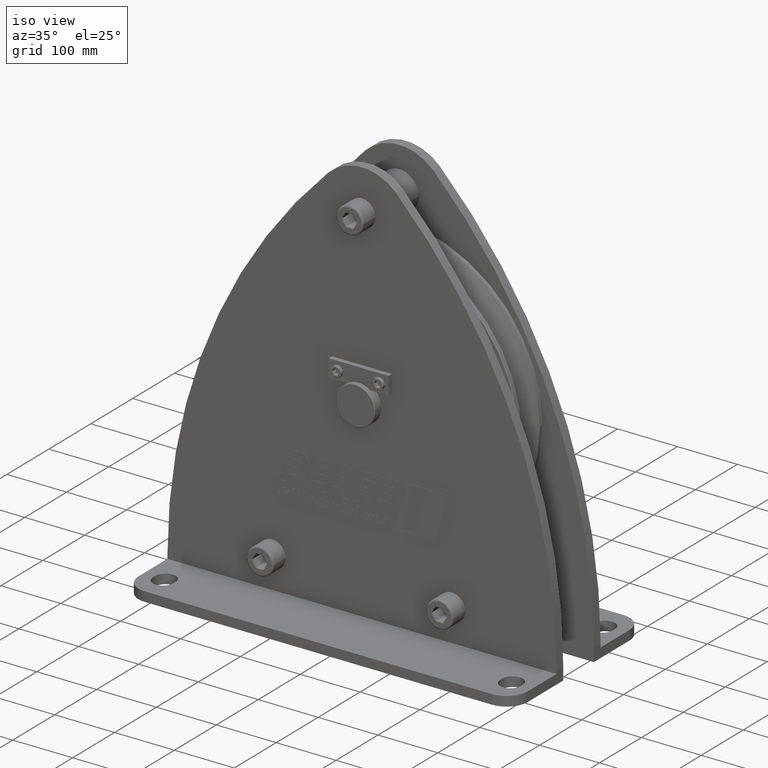
[diagram: clean part render]
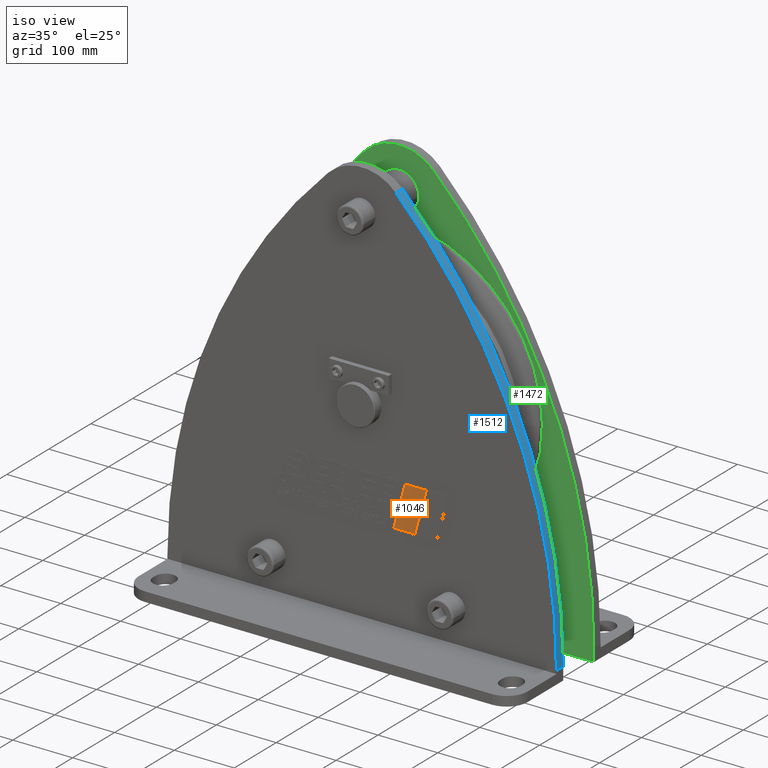
[diagram: same view with three faces highlighted in distinct colors, each labeled with its STEP entity id]
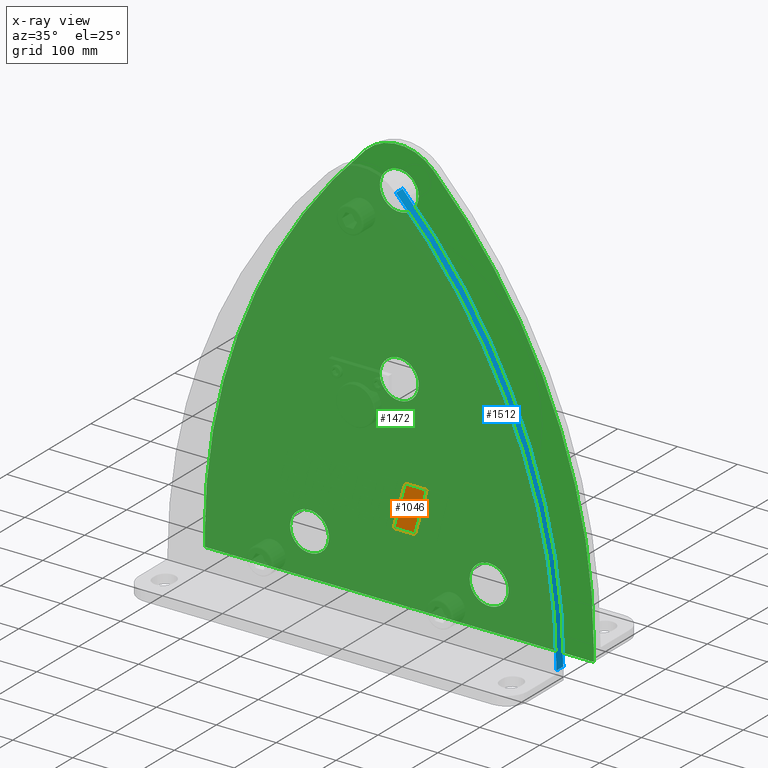
[diagram: x-ray of the same camera — body ghosted, the three highlighted faces saturated]
A machine part, iso view with three faces highlighted in distinct colors.
The next image is the same camera in x-ray (body ghosted, the three faces saturated) — at least one of them is partly hidden behind the body in this view.
Their STEP definitions:

[orange] entity #1046 — the highlighted planar face has unit normal (0, -1, 0).
#1046=ADVANCED_FACE('',(#2564),#2565,.T.);
#2564=FACE_OUTER_BOUND('',#4596,.T.);
#2565=PLANE('',#4597);
#4596=EDGE_LOOP('',(#7965,#7966,#7967,#7968));
#4597=AXIS2_PLACEMENT_3D('',#7969,#7970,#7971);
#7965=ORIENTED_EDGE('',*,*,#12653,.T.);
#7966=ORIENTED_EDGE('',*,*,#12665,.T.);
#7967=ORIENTED_EDGE('',*,*,#12661,.T.);
#7968=ORIENTED_EDGE('',*,*,#12657,.T.);
#7969=CARTESIAN_POINT('',(3.50119933045789E-012,-52.5,-70.7966964212054));
#7970=DIRECTION('',(0.0,-1.0,0.0));
#7971=DIRECTION('',(1.0,0.0,0.0));
#12653=EDGE_CURVE('',#15432,#15430,#15433,.T.);
#12657=EDGE_CURVE('',#15438,#15432,#15439,.T.);
#12661=EDGE_CURVE('',#15444,#15438,#15445,.T.);
#12665=EDGE_CURVE('',#15430,#15444,#15449,.T.);
#15430=VERTEX_POINT('',#22343);
#15432=VERTEX_POINT('',#22346);
#15433=LINE('',#22347,#22348);
#15438=VERTEX_POINT('',#22355);
#15439=LINE('',#22356,#22357);
#15444=VERTEX_POINT('',#22364);
#15445=LINE('',#22365,#22366);
#15449=LINE('',#22372,#22373);
#22343=CARTESIAN_POINT('',(107.514381078122,-52.5,-104.744363610506));
#22346=CARTESIAN_POINT('',(88.3535376120271,-52.5,-176.253604));
#22347=CARTESIAN_POINT('',(108.156790488606,-52.5,-102.346859082896));
#22348=VECTOR('',#27631,1.0);
#22355=CARTESIAN_POINT('',(53.0471320019867,-52.5,-176.253604));
#22356=CARTESIAN_POINT('',(44.1767688060153,-52.5,-176.253604));
#22357=VECTOR('',#27634,1.0);
#22364=CARTESIAN_POINT('',(72.2079754680813,-52.5,-104.744363610506));
#22365=CARTESIAN_POINT('',(64.4525035334388,-52.5,-133.688178526048));
#22366=VECTOR('',#27637,1.0);
#22372=CARTESIAN_POINT('',(36.1039877340424,-52.5,-104.744363610506));
#22373=VECTOR('',#27640,1.0);
#27631=DIRECTION('',(0.258819048283064,0.0,0.965925825436844));
#27634=DIRECTION('',(1.0,0.0,0.0));
#27637=DIRECTION('',(-0.258819048283062,-0.0,-0.965925825436845));
#27640=DIRECTION('',(-1.0,0.0,0.0));

[blue] entity #1512 — the highlighted cylindrical surface (partial cylindrical patch) has radius 920 mm, axis along (0, -1, 0).
#1512=ADVANCED_FACE('',(#3289),#3290,.T.);
#3289=FACE_OUTER_BOUND('',#5321,.T.);
#3290=CYLINDRICAL_SURFACE('',#5322,920.0000000136);
#5321=EDGE_LOOP('',(#10097,#10098,#10099,#10100));
#5322=AXIS2_PLACEMENT_3D('',#10101,#10102,#10103);
#10097=ORIENTED_EDGE('',*,*,#12860,.T.);
#10098=ORIENTED_EDGE('',*,*,#13866,.F.);
#10099=ORIENTED_EDGE('',*,*,#13859,.T.);
#10100=ORIENTED_EDGE('',*,*,#13867,.T.);
#10101=CARTESIAN_POINT('',(-595.0000000136,-36.5,-318.747549016));
#10102=DIRECTION('',(0.0,-1.0,0.0));
#10103=DIRECTION('',(1.0,0.0,6.98129863087675E-012));
#12860=EDGE_CURVE('',#15825,#15823,#15826,.T.);
#13859=EDGE_CURVE('',#17207,#17208,#17209,.T.);
#13866=EDGE_CURVE('',#17207,#15823,#17220,.T.);
#13867=EDGE_CURVE('',#17208,#15825,#17221,.T.);
#15823=VERTEX_POINT('',#22860);
#15825=VERTEX_POINT('',#22863);
#15826=CIRCLE('',#22864,920.0000000136);
#17207=VERTEX_POINT('',#24764);
#17208=VERTEX_POINT('',#24765);
#17209=CIRCLE('',#24766,920.0000000136);
#17220=LINE('',#24780,#24781);
#17221=LINE('',#24782,#24783);
#22860=CARTESIAN_POINT('',(325.0,-52.5,-318.747549009577));
#22863=CARTESIAN_POINT('',(56.666666670509,-52.5,330.660300919498));
#22864=AXIS2_PLACEMENT_3D('',#27977,#27978,#27979);
#24764=CARTESIAN_POINT('',(325.0,-36.5,-318.747549009577));
#24765=CARTESIAN_POINT('',(56.666666670509,-36.5,330.660300919498));
#24766=AXIS2_PLACEMENT_3D('',#28991,#28992,#28993);
#24780=CARTESIAN_POINT('',(325.0,-36.5,-318.747549009577));
#24781=VECTOR('',#29003,1.0);
#24782=CARTESIAN_POINT('',(56.666666670509,-36.5,330.660300919498));
#24783=VECTOR('',#29004,1.0);
#27977=CARTESIAN_POINT('',(-595.0000000136,-52.5,-318.747549016));
#27978=DIRECTION('',(-0.0,1.0,0.0));
#27979=DIRECTION('',(1.0,0.0,6.98129863087675E-012));
#28991=CARTESIAN_POINT('',(-595.0000000136,-36.5,-318.747549016));
#28992=DIRECTION('',(0.0,-1.0,0.0));
#28993=DIRECTION('',(1.0,0.0,6.98129863087675E-012));
#29003=DIRECTION('',(0.0,-1.0,0.0));
#29004=DIRECTION('',(0.0,-1.0,0.0));

[green] entity #1472 — the highlighted planar face has unit normal (0, 1, 0).
#1472=ADVANCED_FACE('',(#3217,#3218,#3219,#3220,#3221),#3222,.F.);
#3217=FACE_BOUND('',#5249,.T.);
#3218=FACE_BOUND('',#5250,.T.);
#3219=FACE_BOUND('',#5251,.T.);
#3220=FACE_BOUND('',#5252,.T.);
#3221=FACE_OUTER_BOUND('',#5253,.T.);
#3222=PLANE('',#5254);
#5249=EDGE_LOOP('',(#9891,#9892));
#5250=EDGE_LOOP('',(#9893,#9894));
#5251=EDGE_LOOP('',(#9895,#9896));
#5252=EDGE_LOOP('',(#9897,#9898,#9899));
#5253=EDGE_LOOP('',(#9900,#9901,#9902,#9903,#9904,#9905));
#5254=AXIS2_PLACEMENT_3D('',#9906,#9907,#9908);
#9891=ORIENTED_EDGE('',*,*,#13783,.T.);
#9892=ORIENTED_EDGE('',*,*,#12539,.T.);
#9893=ORIENTED_EDGE('',*,*,#13784,.T.);
#9894=ORIENTED_EDGE('',*,*,#12544,.T.);
#9895=ORIENTED_EDGE('',*,*,#13785,.T.);
#9896=ORIENTED_EDGE('',*,*,#12549,.T.);
#9897=ORIENTED_EDGE('',*,*,#12234,.T.);
#9898=ORIENTED_EDGE('',*,*,#13786,.T.);
#9899=ORIENTED_EDGE('',*,*,#12235,.T.);
#9900=ORIENTED_EDGE('',*,*,#13787,.F.);
#9901=ORIENTED_EDGE('',*,*,#13788,.F.);
#9902=ORIENTED_EDGE('',*,*,#13789,.F.);
#9903=ORIENTED_EDGE('',*,*,#13790,.F.);
#9904=ORIENTED_EDGE('',*,*,#13791,.F.);
#9905=ORIENTED_EDGE('',*,*,#13792,.F.);
#9906=CARTESIAN_POINT('',(-3.51366102593017E-012,36.5,-70.7966964212054));
#9907=DIRECTION('',(0.0,1.0,0.0));
#9908=DIRECTION('',(-1.0,0.0,0.0));
#12234=EDGE_CURVE('',#14739,#14737,#14740,.T.);
#12235=EDGE_CURVE('',#14733,#14739,#14741,.T.);
#12539=EDGE_CURVE('',#15243,#15240,#15244,.T.);
#12544=EDGE_CURVE('',#15252,#15249,#15253,.T.);
#12549=EDGE_CURVE('',#15261,#15258,#15262,.T.);
#13783=EDGE_CURVE('',#15240,#15243,#17100,.T.);
#13784=EDGE_CURVE('',#15249,#15252,#17101,.T.);
#13785=EDGE_CURVE('',#15258,#15261,#17102,.T.);
#13786=EDGE_CURVE('',#14737,#14733,#17103,.T.);
#13787=EDGE_CURVE('',#17104,#17105,#17106,.T.);
#13788=EDGE_CURVE('',#17107,#17104,#17108,.T.);
#13789=EDGE_CURVE('',#17109,#17107,#17110,.T.);
#13790=EDGE_CURVE('',#17111,#17109,#17112,.T.);
#13791=EDGE_CURVE('',#17113,#17111,#17114,.T.);
#13792=EDGE_CURVE('',#17105,#17113,#17115,.T.);
#14733=VERTEX_POINT('',#19508);
#14737=VERTEX_POINT('',#19513);
#14739=VERTEX_POINT('',#19516);
#14740=CIRCLE('',#19517,32.5);
#14741=CIRCLE('',#19518,32.5);
#15240=VERTEX_POINT('',#22098);
#15243=VERTEX_POINT('',#22102);
#15244=CIRCLE('',#22103,32.5);
#15249=VERTEX_POINT('',#22109);
#15252=VERTEX_POINT('',#22113);
#15253=CIRCLE('',#22114,32.5);
#15258=VERTEX_POINT('',#22120);
#15261=VERTEX_POINT('',#22124);
#15262=CIRCLE('',#22125,32.5);
#17100=CIRCLE('',#24624,32.5);
#17101=CIRCLE('',#24625,32.5);
#17102=CIRCLE('',#24626,32.5);
#17103=CIRCLE('',#24627,32.5);
#17104=VERTEX_POINT('',#24628);
#17105=VERTEX_POINT('',#24629);
#17106=CIRCLE('',#24630,920.0000000136);
#17107=VERTEX_POINT('',#24631);
#17108=LINE('',#24632,#24633);
#17109=VERTEX_POINT('',#24634);
#17110=LINE('',#24635,#24636);
#17111=VERTEX_POINT('',#24637);
#17112=LINE('',#24638,#24639);
#17113=VERTEX_POINT('',#24640);
#17114=CIRCLE('',#24641,920.000000013603);
#17115=CIRCLE('',#24642,80.0000000072001);
#19508=CARTESIAN_POINT('',(3.9801020972289E-015,36.5,-32.5));
#19513=CARTESIAN_POINT('',(-3.9801020972289E-015,36.5,32.5));
#19516=CARTESIAN_POINT('',(-32.5,36.5,0.0));
#19517=AXIS2_PLACEMENT_3D('',#27067,#27068,#27069);
#19518=AXIS2_PLACEMENT_3D('',#27070,#27071,#27072);
#22098=CARTESIAN_POINT('',(-117.5,36.5,-270.0));
#22102=CARTESIAN_POINT('',(-182.5,36.5,-270.0));
#22103=AXIS2_PLACEMENT_3D('',#27468,#27469,#27470);
#22109=CARTESIAN_POINT('',(182.5,36.5,-270.0));
#22113=CARTESIAN_POINT('',(117.5,36.5,-270.0));
#22114=AXIS2_PLACEMENT_3D('',#27476,#27477,#27478);
#22120=CARTESIAN_POINT('',(32.5,36.5,285.0));
#22124=CARTESIAN_POINT('',(-32.5,36.5,285.0));
#22125=AXIS2_PLACEMENT_3D('',#27484,#27485,#27486);
#24624=AXIS2_PLACEMENT_3D('',#28886,#28887,#28888);
#24625=AXIS2_PLACEMENT_3D('',#28889,#28890,#28891);
#24626=AXIS2_PLACEMENT_3D('',#28892,#28893,#28894);
#24627=AXIS2_PLACEMENT_3D('',#28895,#28896,#28897);
#24628=CARTESIAN_POINT('',(-325.0,36.5,-318.747549009577));
#24629=CARTESIAN_POINT('',(-56.666666670509,36.5,330.660300919498));
#24630=AXIS2_PLACEMENT_3D('',#28898,#28899,#28900);
#24631=CARTESIAN_POINT('',(-325.0,36.5,-340.0));
#24632=CARTESIAN_POINT('',(-325.0,36.5,-340.0));
#24633=VECTOR('',#28901,1.0);
#24634=CARTESIAN_POINT('',(325.0,36.5,-340.0));
#24635=CARTESIAN_POINT('',(325.0,36.5,-340.0));
#24636=VECTOR('',#28902,1.0);
#24637=CARTESIAN_POINT('',(325.0,36.5,-318.747549009577));
#24638=CARTESIAN_POINT('',(325.0,36.5,-318.74754901));
#24639=VECTOR('',#28903,1.0);
#24640=CARTESIAN_POINT('',(56.6666666699818,36.5,330.660300919998));
#24641=AXIS2_PLACEMENT_3D('',#28904,#28905,#28906);
#24642=AXIS2_PLACEMENT_3D('',#28907,#28908,#28909);
#27067=CARTESIAN_POINT('',(0.0,36.5,0.0));
#27068=DIRECTION('',(0.0,1.0,0.0));
#27069=DIRECTION('',(-1.0,0.0,0.0));
#27070=CARTESIAN_POINT('',(0.0,36.5,0.0));
#27071=DIRECTION('',(0.0,1.0,0.0));
#27072=DIRECTION('',(-1.0,0.0,0.0));
#27468=CARTESIAN_POINT('',(-150.0,36.5,-270.0));
#27469=DIRECTION('',(-0.0,1.0,0.0));
#27470=DIRECTION('',(1.0,0.0,0.0));
#27476=CARTESIAN_POINT('',(150.0,36.5,-270.0));
#27477=DIRECTION('',(-0.0,1.0,0.0));
#27478=DIRECTION('',(1.0,0.0,0.0));
#27484=CARTESIAN_POINT('',(0.0,36.5,285.0));
#27485=DIRECTION('',(-0.0,1.0,0.0));
#27486=DIRECTION('',(1.0,0.0,0.0));
#28886=CARTESIAN_POINT('',(-150.0,36.5,-270.0));
#28887=DIRECTION('',(-0.0,1.0,0.0));
#28888=DIRECTION('',(1.0,0.0,0.0));
#28889=CARTESIAN_POINT('',(150.0,36.5,-270.0));
#28890=DIRECTION('',(-0.0,1.0,0.0));
#28891=DIRECTION('',(1.0,0.0,0.0));
#28892=CARTESIAN_POINT('',(0.0,36.5,285.0));
#28893=DIRECTION('',(-0.0,1.0,0.0));
#28894=DIRECTION('',(1.0,0.0,0.0));
#28895=CARTESIAN_POINT('',(0.0,36.5,0.0));
#28896=DIRECTION('',(0.0,1.0,0.0));
#28897=DIRECTION('',(-1.0,0.0,0.0));
#28898=CARTESIAN_POINT('',(595.0000000136,36.5,-318.747549016));
#28899=DIRECTION('',(0.0,1.0,0.0));
#28900=DIRECTION('',(-1.0,0.0,6.98129863087675E-012));
#28901=DIRECTION('',(0.0,0.0,1.0));
#28902=DIRECTION('',(-1.0,0.0,0.0));
#28903=DIRECTION('',(0.0,0.0,-1.0));
#28904=CARTESIAN_POINT('',(-595.000000013603,36.5,-318.747549016001));
#28905=DIRECTION('',(-0.0,1.0,0.0));
#28906=DIRECTION('',(0.708333333341822,0.0,0.70587809774554));
#28907=CARTESIAN_POINT('',(7.105427357601E-015,36.5,274.1900530928));
#28908=DIRECTION('',(0.0,1.0,0.0));
#28909=DIRECTION('',(-0.708333333311021,0.0,0.705878097776449));